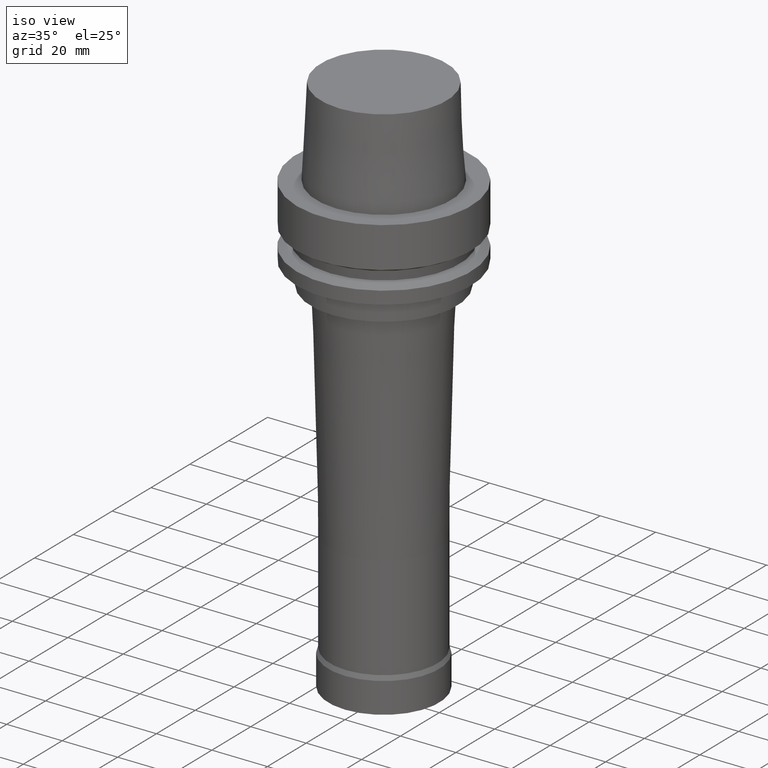
[diagram: clean part render]
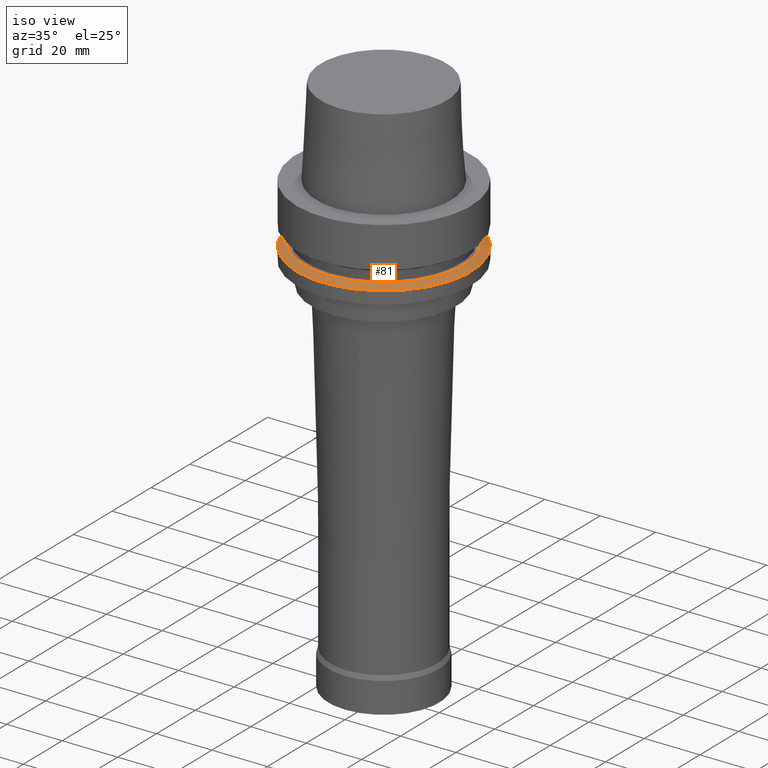
[diagram: same view with one face highlighted and labeled with its STEP entity id]
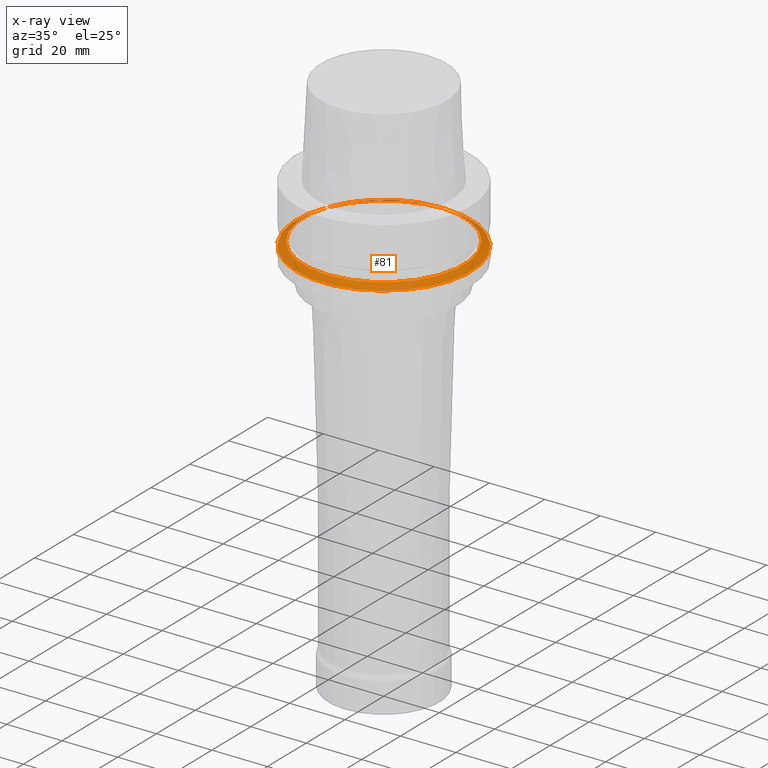
[diagram: x-ray of the same camera — body ghosted, the highlighted face saturated]
A machine part, iso view. The second image highlights one B-rep face of the part: STEP entity #81.
The next image is the same camera in x-ray: the body ghosted, the highlighted face saturated — about 9% of this face is hidden behind the body in this view.
In plain terms, the highlighted conical surface has half-angle 60 deg.
Its self-contained STEP definition (entity closure, byte-faithful):
#81=ADVANCED_FACE('',(#113,#114),#115,.T.);
#113=FACE_BOUND('',#168,.T.);
#114=FACE_BOUND('',#169,.T.);
#115=CONICAL_SURFACE('',#170,30.19879763,1.04719755326565);
#168=EDGE_LOOP('',(#235));
#169=EDGE_LOOP('',(#236));
#170=AXIS2_PLACEMENT_3D('',#237,#238,#239);
#235=ORIENTED_EDGE('',*,*,#305,.F.);
#236=ORIENTED_EDGE('',*,*,#304,.T.);
#237=CARTESIAN_POINT('',(1.26299352357262E-015,2.52598704714523E-015,-20.626249535));
#238=DIRECTION('',(6.12323399573677E-017,1.22464679914735E-016,-1.0));
#239=DIRECTION('',(-1.23259516440783E-032,1.0,1.22464679914735E-016));
#304=EDGE_CURVE('',#328,#328,#329,.T.);
#305=EDGE_CURVE('',#330,#330,#331,.T.);
#328=VERTEX_POINT('',#364);
#329=CIRCLE('',#365,28.89759526);
#330=VERTEX_POINT('',#366);
#331=CIRCLE('',#367,31.5);
#364=CARTESIAN_POINT('',(1.21699275665268E-015,28.89759526,-19.875));
#365=AXIS2_PLACEMENT_3D('',#406,#407,#408);
#366=CARTESIAN_POINT('',(1.30899429049255E-015,31.5,-21.37749907));
#367=AXIS2_PLACEMENT_3D('',#409,#410,#411);
#406=CARTESIAN_POINT('',(1.21699275665268E-015,2.43398551330536E-015,-19.875));
#407=DIRECTION('',(6.12323399573677E-017,1.22464679914735E-016,-1.0));
#408=DIRECTION('',(-1.23259516440783E-032,1.0,1.22464679914735E-016));
#409=CARTESIAN_POINT('',(1.30899429049255E-015,2.6179885809851E-015,-21.37749907));
#410=DIRECTION('',(6.12323399573677E-017,1.22464679914735E-016,-1.0));
#411=DIRECTION('',(-1.23259516440783E-032,1.0,1.22464679914735E-016));